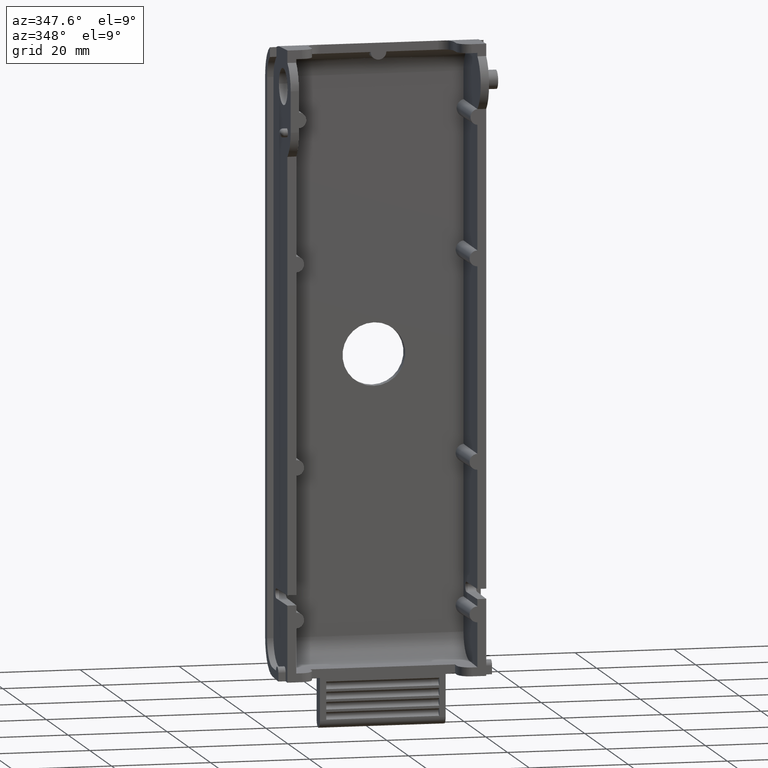
[diagram: clean part render]
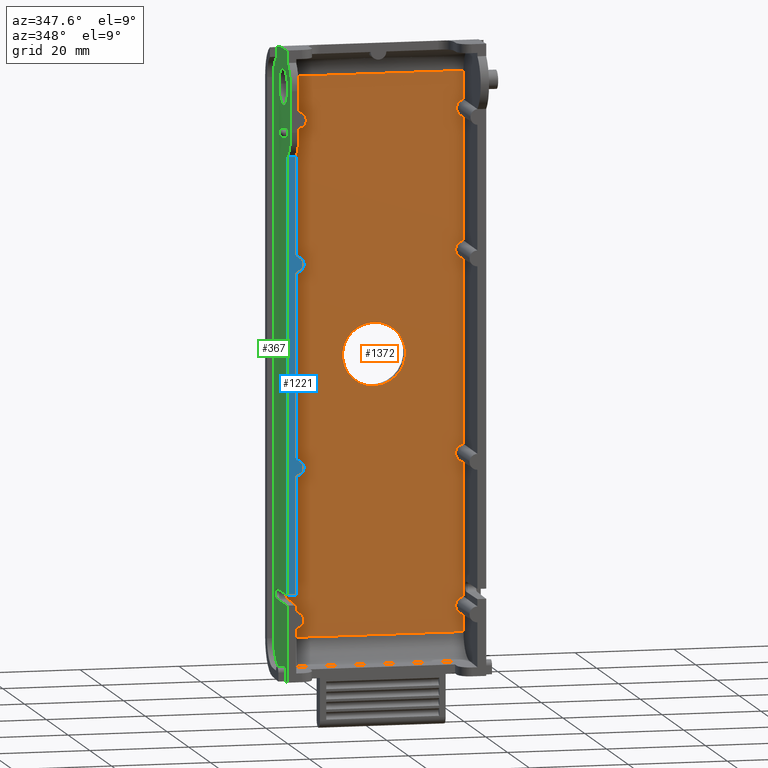
[diagram: same view with three faces highlighted in distinct colors, each labeled with its STEP entity id]
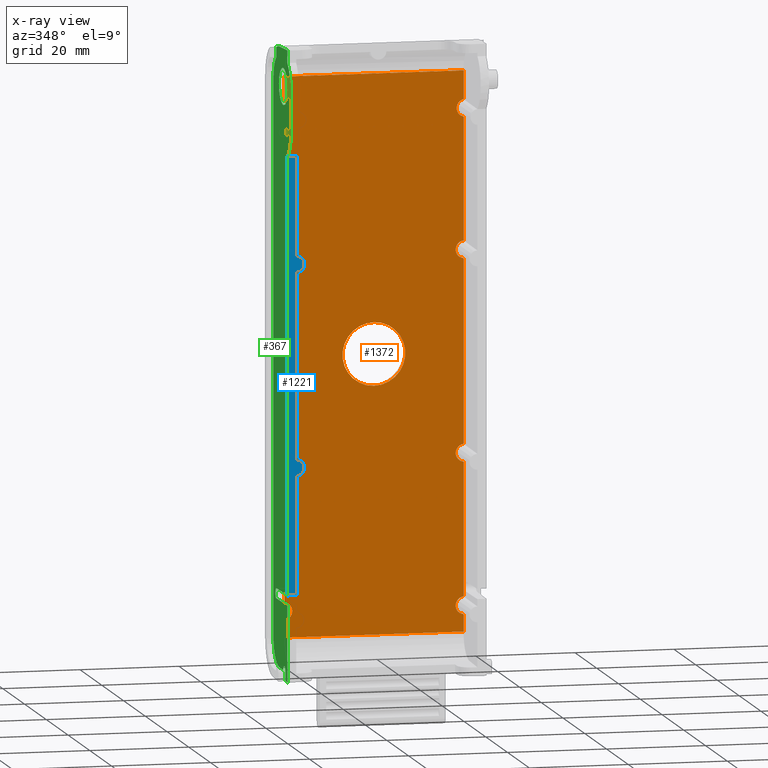
[diagram: x-ray of the same camera — body ghosted, the three highlighted faces saturated]
A machine part, auxiliary view with three faces highlighted in distinct colors.
The next image is the same camera in x-ray (body ghosted, the three faces saturated) — at least one of them is partly hidden behind the body in this view.
Their STEP definitions:

[orange] entity #1372 — the highlighted planar face has unit normal (0, -1, 0).
#13 = VECTOR ( 'NONE', #3263, 39.37007874015748100 ) ;
#54 = DIRECTION ( 'NONE',  ( 0.0000000000000000000, 0.0000000000000000000, -1.000000000000000000 ) ) ;
#77 = CIRCLE ( 'NONE', #538, 0.07061660519162112100 ) ;
#87 = CARTESIAN_POINT ( 'NONE',  ( -0.7125342721087089000, 0.4650000000000000800, 0.8701485969136423200 ) ) ;
#144 = CARTESIAN_POINT ( 'NONE',  ( 0.7206508773003300600, 0.4650000000000000200, -2.000000000000000400 ) ) ;
#153 = ORIENTED_EDGE ( 'NONE', *, *, #2502, .F. ) ;
#170 = DIRECTION ( 'NONE',  ( 0.0000000000000000000, -1.000000000000000000, 0.0000000000000000000 ) ) ;
#185 = LINE ( 'NONE', #1217, #2813 ) ;
#187 = EDGE_CURVE ( 'NONE', #298, #2807, #1950, .T. ) ;
#201 = DIRECTION ( 'NONE',  ( -0.0000000000000000000, 1.000000000000000000, -0.0000000000000000000 ) ) ;
#202 = VERTEX_POINT ( 'NONE', #3874 ) ;
#205 = CARTESIAN_POINT ( 'NONE',  ( -0.7125342721087089000, 0.4650000000000000200, -0.7298514030863579900 ) ) ;
#220 = CARTESIAN_POINT ( 'NONE',  ( -0.7125342721087089000, 0.4650000000000000800, 2.450000000000000200 ) ) ;
#235 = LINE ( 'NONE', #2969, #3631 ) ;
#238 = DIRECTION ( 'NONE',  ( -0.0000000000000000000, -0.0000000000000000000, -1.000000000000000000 ) ) ;
#289 = AXIS2_PLACEMENT_3D ( 'NONE', #1314, #3615, #1650 ) ;
#298 = VERTEX_POINT ( 'NONE', #3239 ) ;
#333 = LINE ( 'NONE', #4114, #3747 ) ;
#353 = DIRECTION ( 'NONE',  ( -0.0000000000000000000, -0.0000000000000000000, -1.000000000000000000 ) ) ;
#403 = ORIENTED_EDGE ( 'NONE', *, *, #963, .F. ) ;
#421 = CARTESIAN_POINT ( 'NONE',  ( 0.7125342721087089000, 0.4650000000000000200, -0.8701485969136421000 ) ) ;
#430 = CARTESIAN_POINT ( 'NONE',  ( -0.7206508773003300600, 0.4650000000000000200, -0.8000000000000000400 ) ) ;
#457 = VERTEX_POINT ( 'NONE', #2416 ) ;
#474 = DIRECTION ( 'NONE',  ( 0.0000000000000000000, 0.0000000000000000000, -1.000000000000000000 ) ) ;
#538 = AXIS2_PLACEMENT_3D ( 'NONE', #430, #2735, #763 ) ;
#557 = VERTEX_POINT ( 'NONE', #1553 ) ;
#576 = CARTESIAN_POINT ( 'NONE',  ( 0.7125342721087089000, 0.4650000000000000800, 2.450000000000000200 ) ) ;
#596 = LINE ( 'NONE', #4113, #4008 ) ;
#639 = CARTESIAN_POINT ( 'NONE',  ( 0.7125342721087089000, 0.4650000000000000200, 0.8701485969136421000 ) ) ;
#714 = VERTEX_POINT ( 'NONE', #3972 ) ;
#739 = EDGE_CURVE ( 'NONE', #202, #3599, #1536, .T. ) ;
#745 = DIRECTION ( 'NONE',  ( 0.0000000000000000000, -1.000000000000000000, 0.0000000000000000000 ) ) ;
#763 = DIRECTION ( 'NONE',  ( 0.0000000000000000000, 0.0000000000000000000, -1.000000000000000000 ) ) ;
#764 = ORIENTED_EDGE ( 'NONE', *, *, #2616, .T. ) ;
#773 = ORIENTED_EDGE ( 'NONE', *, *, #2632, .T. ) ;
#901 = CIRCLE ( 'NONE', #289, 0.07061660519162112100 ) ;
#902 = LINE ( 'NONE', #4257, #13 ) ;
#921 = CARTESIAN_POINT ( 'NONE',  ( -0.6343070558001396900, 0.4649999999999999700, 1.908608527929689400 ) ) ;
#946 = VERTEX_POINT ( 'NONE', #2773 ) ;
#963 = EDGE_CURVE ( 'NONE', #2807, #3726, #596, .T. ) ;
#1029 = ORIENTED_EDGE ( 'NONE', *, *, #1320, .T. ) ;
#1053 = EDGE_CURVE ( 'NONE', #2590, #3726, #1947, .T. ) ;
#1058 = CIRCLE ( 'NONE', #4160, 0.07061660519162112100 ) ;
#1066 = VECTOR ( 'NONE', #2024, 39.37007874015748100 ) ;
#1070 = AXIS2_PLACEMENT_3D ( 'NONE', #3909, #1934, #4239 ) ;
#1071 = EDGE_CURVE ( 'NONE', #1181, #714, #185, .T. ) ;
#1100 = CARTESIAN_POINT ( 'NONE',  ( 0.7125342721087089000, 0.4650000000000000800, 2.450000000000000200 ) ) ;
#1115 = FACE_OUTER_BOUND ( 'NONE', #2717, .T. ) ;
#1134 = ORIENTED_EDGE ( 'NONE', *, *, #2592, .F. ) ;
#1181 = VERTEX_POINT ( 'NONE', #3912 ) ;
#1217 = CARTESIAN_POINT ( 'NONE',  ( -0.7125342721087089000, 0.4650000000000000800, 2.450000000000000200 ) ) ;
#1279 = ORIENTED_EDGE ( 'NONE', *, *, #1946, .F. ) ;
#1288 = AXIS2_PLACEMENT_3D ( 'NONE', #2719, #745, #3037 ) ;
#1302 = EDGE_CURVE ( 'NONE', #3115, #2496, #235, .T. ) ;
#1314 = CARTESIAN_POINT ( 'NONE',  ( 0.7206508773003300600, 0.4650000000000000200, -0.8000000000000000400 ) ) ;
#1320 = EDGE_CURVE ( 'NONE', #457, #1962, #1992, .T. ) ;
#1362 = LINE ( 'NONE', #1963, #1576 ) ;
#1372 = ADVANCED_FACE ( 'NONE', ( #1115, #2650 ), #3023, .T. ) ;
#1491 = EDGE_CURVE ( 'NONE', #2590, #714, #3901, .T. ) ;
#1507 = DIRECTION ( 'NONE',  ( -0.0000000000000000000, -0.0000000000000000000, -1.000000000000000000 ) ) ;
#1532 = EDGE_CURVE ( 'NONE', #2496, #3314, #1058, .T. ) ;
#1536 = LINE ( 'NONE', #3663, #1066 ) ;
#1543 = AXIS2_PLACEMENT_3D ( 'NONE', #3795, #1822, #4132 ) ;
#1548 = ORIENTED_EDGE ( 'NONE', *, *, #2332, .T. ) ;
#1553 = CARTESIAN_POINT ( 'NONE',  ( 0.7125342721087089000, 0.4650000000000000200, -0.7298514030863579900 ) ) ;
#1572 = EDGE_CURVE ( 'NONE', #1181, #1749, #77, .T. ) ;
#1574 = CARTESIAN_POINT ( 'NONE',  ( -0.7125342721087089000, 0.4650000000000000800, 2.018509417297156700 ) ) ;
#1576 = VECTOR ( 'NONE', #2295, 39.37007874015748100 ) ;
#1618 = VECTOR ( 'NONE', #2146, 39.37007874015748100 ) ;
#1650 = DIRECTION ( 'NONE',  ( 0.0000000000000000000, 0.0000000000000000000, -1.000000000000000000 ) ) ;
#1654 = EDGE_CURVE ( 'NONE', #298, #2121, #1736, .T. ) ;
#1711 = ORIENTED_EDGE ( 'NONE', *, *, #1654, .T. ) ;
#1712 = VERTEX_POINT ( 'NONE', #3794 ) ;
#1736 = CIRCLE ( 'NONE', #1871, 0.07061660519162138400 ) ;
#1749 = VERTEX_POINT ( 'NONE', #205 ) ;
#1822 = DIRECTION ( 'NONE',  ( -0.0000000000000000000, 1.000000000000000000, -0.0000000000000000000 ) ) ;
#1871 = AXIS2_PLACEMENT_3D ( 'NONE', #144, #2454, #474 ) ;
#1927 =( BOUNDED_CURVE ( )  B_SPLINE_CURVE ( 3, ( #1574, #2248, #921, #3218 ),
 .UNSPECIFIED., .F., .F. ) 
 B_SPLINE_CURVE_WITH_KNOTS ( ( 4, 4 ),
 ( 1.904536264446898600, 4.378649042732700300 ),
 .UNSPECIFIED. ) 
 CURVE ( )  GEOMETRIC_REPRESENTATION_ITEM ( )  RATIONAL_B_SPLINE_CURVE ( ( 1.000000000000000000, 0.5517192622092108600, 0.5517192622092108600, 1.000000000000000000 ) ) 
 REPRESENTATION_ITEM ( '' )  );
#1934 = DIRECTION ( 'NONE',  ( 0.0000000000000000000, -1.000000000000000000, 0.0000000000000000000 ) ) ;
#1946 = EDGE_CURVE ( 'NONE', #1712, #1962, #1362, .T. ) ;
#1947 = LINE ( 'NONE', #220, #2048 ) ;
#1950 = LINE ( 'NONE', #2227, #2055 ) ;
#1962 = VERTEX_POINT ( 'NONE', #639 ) ;
#1963 = CARTESIAN_POINT ( 'NONE',  ( 0.7125342721087089000, 0.4650000000000000800, 2.450000000000000200 ) ) ;
#1992 = CIRCLE ( 'NONE', #2266, 0.07061660519162112100 ) ;
#2016 = ORIENTED_EDGE ( 'NONE', *, *, #1302, .T. ) ;
#2024 = DIRECTION ( 'NONE',  ( -0.0000000000000000000, -0.0000000000000000000, -1.000000000000000000 ) ) ;
#2032 = VECTOR ( 'NONE', #3402, 39.37007874015748100 ) ;
#2033 = DIRECTION ( 'NONE',  ( -0.0000000000000000000, 1.000000000000000000, -0.0000000000000000000 ) ) ;
#2048 = VECTOR ( 'NONE', #2530, 39.37007874015748100 ) ;
#2055 = VECTOR ( 'NONE', #238, 39.37007874015748100 ) ;
#2117 = CARTESIAN_POINT ( 'NONE',  ( 0.8000000000000000400, 0.4650000000000000200, 2.206764030802090400 ) ) ;
#2121 = VERTEX_POINT ( 'NONE', #2715 ) ;
#2146 = DIRECTION ( 'NONE',  ( 1.000000000000000000, 0.0000000000000000000, 0.0000000000000000000 ) ) ;
#2156 = CARTESIAN_POINT ( 'NONE',  ( -0.7206508773003298400, 0.4650000000000000200, -2.000000000000000900 ) ) ;
#2188 = CARTESIAN_POINT ( 'NONE',  ( -0.7206508773003300600, 0.4650000000000000200, 0.8000000000000000400 ) ) ;
#2204 = CARTESIAN_POINT ( 'NONE',  ( -0.7125342721087089000, 0.4650000000000000800, 1.881490582702844500 ) ) ;
#2227 = CARTESIAN_POINT ( 'NONE',  ( 0.7125342721087089000, 0.4650000000000000800, 2.450000000000000200 ) ) ;
#2234 = DIRECTION ( 'NONE',  ( -0.0000000000000000000, -0.0000000000000000000, -1.000000000000000000 ) ) ;
#2248 = CARTESIAN_POINT ( 'NONE',  ( -0.6343070558001396900, 0.4649999999999999700, 1.991391472070312300 ) ) ;
#2266 = AXIS2_PLACEMENT_3D ( 'NONE', #4009, #2033, #54 ) ;
#2295 = DIRECTION ( 'NONE',  ( -0.0000000000000000000, -0.0000000000000000000, -1.000000000000000000 ) ) ;
#2300 = ORIENTED_EDGE ( 'NONE', *, *, #3175, .F. ) ;
#2315 = ORIENTED_EDGE ( 'NONE', *, *, #187, .F. ) ;
#2332 = EDGE_CURVE ( 'NONE', #2476, #557, #901, .T. ) ;
#2416 = CARTESIAN_POINT ( 'NONE',  ( 0.7125342721087089000, 0.4650000000000000200, 0.7298514030863579900 ) ) ;
#2454 = DIRECTION ( 'NONE',  ( -0.0000000000000000000, 1.000000000000000000, -0.0000000000000000000 ) ) ;
#2476 = VERTEX_POINT ( 'NONE', #421 ) ;
#2483 = DIRECTION ( 'NONE',  ( 0.0000000000000000000, 0.0000000000000000000, -1.000000000000000000 ) ) ;
#2496 = VERTEX_POINT ( 'NONE', #87 ) ;
#2502 = EDGE_CURVE ( 'NONE', #2476, #2121, #2799, .T. ) ;
#2512 = DIRECTION ( 'NONE',  ( 0.0000000000000000000, 0.0000000000000000000, -1.000000000000000000 ) ) ;
#2530 = DIRECTION ( 'NONE',  ( -0.0000000000000000000, -0.0000000000000000000, -1.000000000000000000 ) ) ;
#2590 = VERTEX_POINT ( 'NONE', #3780 ) ;
#2592 = EDGE_CURVE ( 'NONE', #2679, #202, #4246, .T. ) ;
#2616 = EDGE_CURVE ( 'NONE', #1712, #3599, #3363, .T. ) ;
#2632 = EDGE_CURVE ( 'NONE', #2679, #2922, #333, .T. ) ;
#2645 = LINE ( 'NONE', #576, #4207 ) ;
#2650 = FACE_BOUND ( 'NONE', #2899, .T. ) ;
#2679 = VERTEX_POINT ( 'NONE', #4154 ) ;
#2715 = CARTESIAN_POINT ( 'NONE',  ( 0.7125342721087089000, 0.4650000000000000200, -1.929851403086358300 ) ) ;
#2717 = EDGE_LOOP ( 'NONE', ( #764, #3096, #1134, #773, #3475, #2016, #3124, #3450, #2891, #3015, #3195, #2793, #403, #2315, #1711, #153, #1548, #2300, #1029, #1279 ) ) ;
#2719 = CARTESIAN_POINT ( 'NONE',  ( 0.8000000000000000400, 0.4650000000000000200, 2.467500000000000200 ) ) ;
#2735 = DIRECTION ( 'NONE',  ( 0.0000000000000000000, -1.000000000000000000, 0.0000000000000000000 ) ) ;
#2773 = CARTESIAN_POINT ( 'NONE',  ( 0.0000000000000000000, 0.4650000000000000200, -0.2500000000000000000 ) ) ;
#2793 = ORIENTED_EDGE ( 'NONE', *, *, #1053, .T. ) ;
#2799 = LINE ( 'NONE', #1100, #2032 ) ;
#2807 = VERTEX_POINT ( 'NONE', #2954 ) ;
#2813 = VECTOR ( 'NONE', #4173, 39.37007874015748100 ) ;
#2891 = ORIENTED_EDGE ( 'NONE', *, *, #1572, .F. ) ;
#2899 = EDGE_LOOP ( 'NONE', ( #3504 ) ) ;
#2922 = VERTEX_POINT ( 'NONE', #4044 ) ;
#2954 = CARTESIAN_POINT ( 'NONE',  ( 0.7125342721087087900, 0.4650000000000000800, -2.206764030802090800 ) ) ;
#2969 = CARTESIAN_POINT ( 'NONE',  ( -0.7125342721087089000, 0.4650000000000000800, 2.450000000000000200 ) ) ;
#3015 = ORIENTED_EDGE ( 'NONE', *, *, #1071, .T. ) ;
#3023 = PLANE ( 'NONE',  #1288 ) ;
#3036 = AXIS2_PLACEMENT_3D ( 'NONE', #2156, #170, #2483 ) ;
#3037 = DIRECTION ( 'NONE',  ( 0.0000000000000000000, -0.0000000000000000000, -1.000000000000000000 ) ) ;
#3096 = ORIENTED_EDGE ( 'NONE', *, *, #739, .F. ) ;
#3115 = VERTEX_POINT ( 'NONE', #2204 ) ;
#3120 = DIRECTION ( 'NONE',  ( -1.000000000000000000, -0.0000000000000000000, -0.0000000000000000000 ) ) ;
#3124 = ORIENTED_EDGE ( 'NONE', *, *, #1532, .T. ) ;
#3175 = EDGE_CURVE ( 'NONE', #457, #557, #2645, .T. ) ;
#3192 = EDGE_CURVE ( 'NONE', #2922, #3115, #1927, .T. ) ;
#3195 = ORIENTED_EDGE ( 'NONE', *, *, #1491, .F. ) ;
#3218 = CARTESIAN_POINT ( 'NONE',  ( -0.7125342721087089000, 0.4650000000000000800, 1.881490582702844500 ) ) ;
#3229 = EDGE_CURVE ( 'NONE', #946, #946, #4104, .T. ) ;
#3239 = CARTESIAN_POINT ( 'NONE',  ( 0.7125342721087089000, 0.4650000000000000200, -2.070148596913643100 ) ) ;
#3263 = DIRECTION ( 'NONE',  ( -0.0000000000000000000, -0.0000000000000000000, -1.000000000000000000 ) ) ;
#3314 = VERTEX_POINT ( 'NONE', #3612 ) ;
#3363 = CIRCLE ( 'NONE', #1543, 0.07061660519162112100 ) ;
#3402 = DIRECTION ( 'NONE',  ( -0.0000000000000000000, -0.0000000000000000000, -1.000000000000000000 ) ) ;
#3450 = ORIENTED_EDGE ( 'NONE', *, *, #3652, .T. ) ;
#3475 = ORIENTED_EDGE ( 'NONE', *, *, #3192, .T. ) ;
#3504 = ORIENTED_EDGE ( 'NONE', *, *, #3229, .F. ) ;
#3599 = VERTEX_POINT ( 'NONE', #4232 ) ;
#3612 = CARTESIAN_POINT ( 'NONE',  ( -0.7125342721087089000, 0.4650000000000000800, 0.7298514030863581000 ) ) ;
#3615 = DIRECTION ( 'NONE',  ( -0.0000000000000000000, 1.000000000000000000, -0.0000000000000000000 ) ) ;
#3631 = VECTOR ( 'NONE', #353, 39.37007874015748100 ) ;
#3652 = EDGE_CURVE ( 'NONE', #3314, #1749, #902, .T. ) ;
#3663 = CARTESIAN_POINT ( 'NONE',  ( 0.7125342721087089000, 0.4650000000000000800, 2.450000000000000200 ) ) ;
#3726 = VERTEX_POINT ( 'NONE', #3974 ) ;
#3747 = VECTOR ( 'NONE', #1507, 39.37007874015748100 ) ;
#3780 = CARTESIAN_POINT ( 'NONE',  ( -0.7125342721087089000, 0.4650000000000000200, -2.070148596913643100 ) ) ;
#3794 = CARTESIAN_POINT ( 'NONE',  ( 0.7125342721087089000, 0.4650000000000000200, 1.843519628296082600 ) ) ;
#3795 = CARTESIAN_POINT ( 'NONE',  ( 0.7281615402634036300, 0.4650000000000000200, 1.912385392060166100 ) ) ;
#3874 = CARTESIAN_POINT ( 'NONE',  ( 0.7125342721087087900, 0.4650000000000000800, 2.206764030802090400 ) ) ;
#3901 = CIRCLE ( 'NONE', #3036, 0.07061660519162138400 ) ;
#3909 = CARTESIAN_POINT ( 'NONE',  ( 0.0000000000000000000, 0.4650000000000000200, 0.0000000000000000000 ) ) ;
#3912 = CARTESIAN_POINT ( 'NONE',  ( -0.7125342721087089000, 0.4650000000000000200, -0.8701485969136421000 ) ) ;
#3972 = CARTESIAN_POINT ( 'NONE',  ( -0.7125342721087089000, 0.4650000000000000200, -1.929851403086358500 ) ) ;
#3974 = CARTESIAN_POINT ( 'NONE',  ( -0.7125342721087089000, 0.4650000000000000800, -2.206764030802090800 ) ) ;
#4008 = VECTOR ( 'NONE', #3120, 39.37007874015748100 ) ;
#4009 = CARTESIAN_POINT ( 'NONE',  ( 0.7206508773003300600, 0.4650000000000000200, 0.8000000000000000400 ) ) ;
#4044 = CARTESIAN_POINT ( 'NONE',  ( -0.7125342721087089000, 0.4650000000000000800, 2.018509417297156700 ) ) ;
#4104 = CIRCLE ( 'NONE', #1070, 0.2500000000000000000 ) ;
#4113 = CARTESIAN_POINT ( 'NONE',  ( 0.8000000000000000400, 0.4650000000000000200, -2.206764030802090800 ) ) ;
#4114 = CARTESIAN_POINT ( 'NONE',  ( -0.7125342721087089000, 0.4650000000000000800, 2.450000000000000200 ) ) ;
#4132 = DIRECTION ( 'NONE',  ( 0.0000000000000000000, 0.0000000000000000000, -1.000000000000000000 ) ) ;
#4154 = CARTESIAN_POINT ( 'NONE',  ( -0.7125342721087082300, 0.4650000000000000200, 2.206764030802090400 ) ) ;
#4160 = AXIS2_PLACEMENT_3D ( 'NONE', #2188, #201, #2512 ) ;
#4173 = DIRECTION ( 'NONE',  ( -0.0000000000000000000, -0.0000000000000000000, -1.000000000000000000 ) ) ;
#4207 = VECTOR ( 'NONE', #2234, 39.37007874015748100 ) ;
#4232 = CARTESIAN_POINT ( 'NONE',  ( 0.7125342721087089000, 0.4650000000000000200, 1.981251155824249600 ) ) ;
#4239 = DIRECTION ( 'NONE',  ( 0.0000000000000000000, 0.0000000000000000000, -1.000000000000000000 ) ) ;
#4246 = LINE ( 'NONE', #2117, #1618 ) ;
#4257 = CARTESIAN_POINT ( 'NONE',  ( -0.7125342721087089000, 0.4650000000000000800, 2.450000000000000200 ) ) ;

[blue] entity #1221 — the highlighted planar face has unit normal (-0, 1, 0).
#26 = DIRECTION ( 'NONE',  ( 0.0000000000000000000, 0.0000000000000000000, -1.000000000000000000 ) ) ;
#59 = EDGE_CURVE ( 'NONE', #4229, #478, #918, .T. ) ;
#76 = ORIENTED_EDGE ( 'NONE', *, *, #2405, .F. ) ;
#92 = ORIENTED_EDGE ( 'NONE', *, *, #2025, .T. ) ;
#253 = EDGE_CURVE ( 'NONE', #360, #478, #3489, .T. ) ;
#275 = VECTOR ( 'NONE', #2071, 39.37007874015748100 ) ;
#287 = CARTESIAN_POINT ( 'NONE',  ( -0.7672774508502276900, -1.707404996040164500E-017, 1.650145907595724300 ) ) ;
#313 = PLANE ( 'NONE',  #2479 ) ;
#360 = VERTEX_POINT ( 'NONE', #3305 ) ;
#445 = VERTEX_POINT ( 'NONE', #2726 ) ;
#464 = EDGE_CURVE ( 'NONE', #360, #3649, #1120, .T. ) ;
#478 = VERTEX_POINT ( 'NONE', #3073 ) ;
#755 = CARTESIAN_POINT ( 'NONE',  ( -0.7206508773003299500, 0.0000000000000000000, 0.7374999999999999300 ) ) ;
#823 = ORIENTED_EDGE ( 'NONE', *, *, #2727, .T. ) ;
#832 = EDGE_LOOP ( 'NONE', ( #2804, #823, #1076, #1403, #2230, #92, #76, #1450 ) ) ;
#886 = DIRECTION ( 'NONE',  ( 1.000000000000000000, -0.0000000000000000000, -0.0000000000000000000 ) ) ;
#918 = LINE ( 'NONE', #3960, #2471 ) ;
#1016 = CARTESIAN_POINT ( 'NONE',  ( -0.7206508773003300600, 0.0000000000000000000, 0.8000000000000000400 ) ) ;
#1049 = LINE ( 'NONE', #4047, #275 ) ;
#1076 = ORIENTED_EDGE ( 'NONE', *, *, #464, .F. ) ;
#1120 = LINE ( 'NONE', #3059, #2000 ) ;
#1221 = ADVANCED_FACE ( 'NONE', ( #1423 ), #313, .F. ) ;
#1235 = VERTEX_POINT ( 'NONE', #3622 ) ;
#1280 = CARTESIAN_POINT ( 'NONE',  ( -0.7206508773003300600, 0.0000000000000000000, -0.8000000000000000400 ) ) ;
#1308 = DIRECTION ( 'NONE',  ( 0.0000000000000000000, -0.0000000000000000000, 1.000000000000000000 ) ) ;
#1349 = DIRECTION ( 'NONE',  ( 0.0000000000000000000, 0.0000000000000000000, 1.000000000000000000 ) ) ;
#1403 = ORIENTED_EDGE ( 'NONE', *, *, #253, .T. ) ;
#1423 = FACE_OUTER_BOUND ( 'NONE', #832, .T. ) ;
#1450 = ORIENTED_EDGE ( 'NONE', *, *, #2276, .T. ) ;
#1559 = VERTEX_POINT ( 'NONE', #4163 ) ;
#1608 = CARTESIAN_POINT ( 'NONE',  ( -0.7206508773003300600, 1.024442997624098700E-016, 1.650704065515080600 ) ) ;
#1611 = DIRECTION ( 'NONE',  ( 0.0000000000000000000, 0.0000000000000000000, -1.000000000000000000 ) ) ;
#2000 = VECTOR ( 'NONE', #2401, 39.37007874015748100 ) ;
#2025 = EDGE_CURVE ( 'NONE', #4229, #4162, #3575, .T. ) ;
#2071 = DIRECTION ( 'NONE',  ( 0.0000000000000000000, 0.0000000000000000000, -1.000000000000000000 ) ) ;
#2230 = ORIENTED_EDGE ( 'NONE', *, *, #59, .F. ) ;
#2276 = EDGE_CURVE ( 'NONE', #1559, #1235, #2331, .T. ) ;
#2331 =( BOUNDED_CURVE ( )  B_SPLINE_CURVE ( 3, ( #1608, #4242, #287, #2599 ),
 .UNSPECIFIED., .F., .F. ) 
 B_SPLINE_CURVE_WITH_KNOTS ( ( 4, 4 ),
 ( 4.109700736648319400, 4.115621377713483600 ),
 .UNSPECIFIED. ) 
 CURVE ( )  GEOMETRIC_REPRESENTATION_ITEM ( )  RATIONAL_B_SPLINE_CURVE ( ( 1.000000000000000000, 0.9999970788362480000, 0.9999970788362480000, 1.000000000000000000 ) ) 
 REPRESENTATION_ITEM ( '' )  );
#2354 = DIRECTION ( 'NONE',  ( 0.0000000000000000000, 0.0000000000000000000, -1.000000000000000000 ) ) ;
#2401 = DIRECTION ( 'NONE',  ( 0.0000000000000000000, 0.0000000000000000000, -1.000000000000000000 ) ) ;
#2405 = EDGE_CURVE ( 'NONE', #1559, #4162, #2447, .T. ) ;
#2447 = LINE ( 'NONE', #4000, #3996 ) ;
#2471 = VECTOR ( 'NONE', #26, 39.37007874015748100 ) ;
#2479 = AXIS2_PLACEMENT_3D ( 'NONE', #4266, #3271, #1308 ) ;
#2560 = LINE ( 'NONE', #3180, #4210 ) ;
#2599 = CARTESIAN_POINT ( 'NONE',  ( -0.7906615402634036300, 3.414809992080329000E-017, 1.649868637789343500 ) ) ;
#2726 = CARTESIAN_POINT ( 'NONE',  ( -0.7906615402634036300, 0.0000000000000000000, -1.799999999999999800 ) ) ;
#2727 = EDGE_CURVE ( 'NONE', #445, #3649, #2560, .T. ) ;
#2804 = ORIENTED_EDGE ( 'NONE', *, *, #3827, .T. ) ;
#2919 = CARTESIAN_POINT ( 'NONE',  ( -0.7206508773003298400, 0.0000000000000000000, -1.799999999999999800 ) ) ;
#3059 = CARTESIAN_POINT ( 'NONE',  ( -0.7206508773003300600, 0.0000000000000000000, 2.467500000000000200 ) ) ;
#3073 = CARTESIAN_POINT ( 'NONE',  ( -0.7206508773003300600, 0.0000000000000000000, -0.7374999999999999300 ) ) ;
#3180 = CARTESIAN_POINT ( 'NONE',  ( -2.450000000000000200, 0.0000000000000000000, -1.799999999999999800 ) ) ;
#3271 = DIRECTION ( 'NONE',  ( -0.0000000000000000000, 1.000000000000000000, 0.0000000000000000000 ) ) ;
#3305 = CARTESIAN_POINT ( 'NONE',  ( -0.7206508773003300600, 0.0000000000000000000, -0.8625000000000003800 ) ) ;
#3312 = DIRECTION ( 'NONE',  ( -0.0000000000000000000, -1.000000000000000000, -0.0000000000000000000 ) ) ;
#3360 = CARTESIAN_POINT ( 'NONE',  ( -0.7206508773003300600, 0.0000000000000000000, 0.8624999999999999300 ) ) ;
#3417 = AXIS2_PLACEMENT_3D ( 'NONE', #1280, #3574, #1611 ) ;
#3489 = CIRCLE ( 'NONE', #3417, 0.06249999999999995100 ) ;
#3544 = AXIS2_PLACEMENT_3D ( 'NONE', #1016, #3312, #1349 ) ;
#3574 = DIRECTION ( 'NONE',  ( 0.0000000000000000000, -1.000000000000000000, 0.0000000000000000000 ) ) ;
#3575 = CIRCLE ( 'NONE', #3544, 0.06249999999999995100 ) ;
#3622 = CARTESIAN_POINT ( 'NONE',  ( -0.7906615402634036300, 3.414809992080329000E-017, 1.649868637789343500 ) ) ;
#3649 = VERTEX_POINT ( 'NONE', #2919 ) ;
#3827 = EDGE_CURVE ( 'NONE', #1235, #445, #1049, .T. ) ;
#3960 = CARTESIAN_POINT ( 'NONE',  ( -0.7206508773003300600, 0.0000000000000000000, 2.467500000000000200 ) ) ;
#3996 = VECTOR ( 'NONE', #2354, 39.37007874015748100 ) ;
#4000 = CARTESIAN_POINT ( 'NONE',  ( -0.7206508773003300600, 0.0000000000000000000, 2.467500000000000200 ) ) ;
#4047 = CARTESIAN_POINT ( 'NONE',  ( -0.7906615402634036300, 0.0000000000000000000, 2.467500000000000200 ) ) ;
#4162 = VERTEX_POINT ( 'NONE', #3360 ) ;
#4163 = CARTESIAN_POINT ( 'NONE',  ( -0.7206508773003300600, 1.024442997624098700E-016, 1.650704065515080600 ) ) ;
#4210 = VECTOR ( 'NONE', #886, 39.37007874015748100 ) ;
#4229 = VERTEX_POINT ( 'NONE', #755 ) ;
#4242 = CARTESIAN_POINT ( 'NONE',  ( -0.7439404950248002000, -1.707404996040164500E-017, 1.650424384317779300 ) ) ;
#4266 = CARTESIAN_POINT ( 'NONE',  ( 0.8000000000000000400, 0.0000000000000000000, 2.467500000000000200 ) ) ;

[green] entity #367 — the highlighted planar face has unit normal (-0.9998, -0.0175, 0).
#27 = CARTESIAN_POINT ( 'NONE',  ( -0.8000000000000000400, 0.5350000000000000300, 2.467500000000000200 ) ) ;
#122 = CARTESIAN_POINT ( 'NONE',  ( -0.7931676610096630700, 0.1435755613952561200, -2.411126174493035900 ) ) ;
#147 = ORIENTED_EDGE ( 'NONE', *, *, #3905, .T. ) ;
#216 = VERTEX_POINT ( 'NONE', #2562 ) ;
#230 = ORIENTED_EDGE ( 'NONE', *, *, #3946, .F. ) ;
#240 = EDGE_CURVE ( 'NONE', #216, #3287, #966, .T. ) ;
#275 = VECTOR ( 'NONE', #2071, 39.37007874015748100 ) ;
#288 = CARTESIAN_POINT ( 'NONE',  ( -0.7931134799601449200, 0.1404715311472468400, 1.856657750000000300 ) ) ;
#302 = EDGE_LOOP ( 'NONE', ( #2824 ) ) ;
#346 = VERTEX_POINT ( 'NONE', #1663 ) ;
#354 = ORIENTED_EDGE ( 'NONE', *, *, #830, .F. ) ;
#363 = CARTESIAN_POINT ( 'NONE',  ( -0.7984290441564605400, 0.4450000000000002800, -1.879999999999999400 ) ) ;
#367 = ADVANCED_FACE ( 'NONE', ( #3177, #2310, #757 ), #1342, .T. ) ;
#414 = CARTESIAN_POINT ( 'NONE',  ( -0.7906615402634036300, -6.634601186373356800E-033, -2.486182611678085400 ) ) ;
#445 = VERTEX_POINT ( 'NONE', #2726 ) ;
#469 = AXIS2_PLACEMENT_3D ( 'NONE', #27, #3322, #1359 ) ;
#481 =( BOUNDED_CURVE ( )  B_SPLINE_CURVE ( 3, ( #3707, #3364, #1064, #1735 ),
 .UNSPECIFIED., .F., .F. ) 
 B_SPLINE_CURVE_WITH_KNOTS ( ( 4, 4 ),
 ( 0.0000000000000000000, 1.059641341974254300 ),
 .UNSPECIFIED. ) 
 CURVE ( )  GEOMETRIC_REPRESENTATION_ITEM ( )  RATIONAL_B_SPLINE_CURVE ( ( 1.000000000000000000, 0.9085984756239110500, 0.9085984756239110500, 1.000000000000000000 ) ) 
 REPRESENTATION_ITEM ( '' )  );
#532 = LINE ( 'NONE', #4133, #3043 ) ;
#536 = VECTOR ( 'NONE', #1556, 39.37007874015748100 ) ;
#585 = EDGE_CURVE ( 'NONE', #3722, #2001, #599, .T. ) ;
#599 = CIRCLE ( 'NONE', #1048, 0.2500000000000001100 ) ;
#619 = DIRECTION ( 'NONE',  ( 0.01745240643728380300, -0.9998476951563913800, 0.0000000000000000000 ) ) ;
#625 = CARTESIAN_POINT ( 'NONE',  ( -0.7970413087918134500, 0.3654966942057185600, 2.457364139448759300 ) ) ;
#683 = LINE ( 'NONE', #1918, #3211 ) ;
#756 = DIRECTION ( 'NONE',  ( 0.0000000000000000000, 0.0000000000000000000, 1.000000000000000000 ) ) ;
#757 = FACE_BOUND ( 'NONE', #932, .T. ) ;
#765 = CARTESIAN_POINT ( 'NONE',  ( -0.7931676610096630700, 0.1435755613952561200, -2.411126174493035900 ) ) ;
#786 = CARTESIAN_POINT ( 'NONE',  ( -0.7917276719524934900, 0.06107864356128385500, -2.339849056468578300 ) ) ;
#799 = CARTESIAN_POINT ( 'NONE',  ( -0.7956118982655240300, 0.2836058199999999500, 2.181657750000000300 ) ) ;
#827 = CARTESIAN_POINT ( 'NONE',  ( -0.7987781454550247900, 0.4650000000000000800, 2.206764030802090400 ) ) ;
#830 = EDGE_CURVE ( 'NONE', #3287, #4274, #2307, .T. ) ;
#839 = CARTESIAN_POINT ( 'NONE',  ( -0.7973965870131013400, 0.3858505698715437600, -2.402665744768424500 ) ) ;
#843 =( BOUNDED_CURVE ( )  B_SPLINE_CURVE ( 3, ( #799, #2445, #1128, #3427, #1461, #3769, #1793 ),
 .UNSPECIFIED., .T., .F. ) 
 B_SPLINE_CURVE_WITH_KNOTS ( ( 4, 3, 4 ),
 ( 0.0000000000000000000, 3.141592653589793100, 6.283185307179586200 ),
 .UNSPECIFIED. ) 
 CURVE ( )  GEOMETRIC_REPRESENTATION_ITEM ( )  RATIONAL_B_SPLINE_CURVE ( ( 1.000000000000000000, 0.3333333333333333700, 0.3333333333333333700, 1.000000000000000000, 0.3333333333333333700, 0.3333333333333333700, 1.000000000000000000 ) ) 
 REPRESENTATION_ITEM ( '' )  );
#875 = VERTEX_POINT ( 'NONE', #1112 ) ;
#884 = CARTESIAN_POINT ( 'NONE',  ( -0.7954516091742255300, 0.2744228641096752600, 2.476599554097245200 ) ) ;
#910 = CARTESIAN_POINT ( 'NONE',  ( -0.7969948834043830700, 0.3628369855411390200, 2.381200048471099800 ) ) ;
#924 = CARTESIAN_POINT ( 'NONE',  ( -0.7906615402634037400, 0.0000000000000000000, 2.486182611678085400 ) ) ;
#932 = EDGE_LOOP ( 'NONE', ( #230 ) ) ;
#944 = ORIENTED_EDGE ( 'NONE', *, *, #2640, .F. ) ;
#966 = LINE ( 'NONE', #1596, #2617 ) ;
#1021 = ORIENTED_EDGE ( 'NONE', *, *, #1874, .T. ) ;
#1048 = AXIS2_PLACEMENT_3D ( 'NONE', #3870, #1893, #4201 ) ;
#1049 = LINE ( 'NONE', #4047, #275 ) ;
#1064 = CARTESIAN_POINT ( 'NONE',  ( -0.7981239283288748000, 0.4275199259446596500, 2.344920935994308400 ) ) ;
#1082 = CARTESIAN_POINT ( 'NONE',  ( -0.7969694493362000600, 0.3613798687508218400, 2.339473683000789600 ) ) ;
#1083 = CARTESIAN_POINT ( 'NONE',  ( -0.8029608941900767700, 0.7046295145422341000, -2.391533738722755800 ) ) ;
#1109 = VECTOR ( 'NONE', #3522, 39.37007874015748100 ) ;
#1112 = CARTESIAN_POINT ( 'NONE',  ( -0.7970326389622032200, 0.3649999999999999400, -1.880000000000000800 ) ) ;
#1126 = ORIENTED_EDGE ( 'NONE', *, *, #2443, .F. ) ;
#1128 = CARTESIAN_POINT ( 'NONE',  ( -0.7905499294363410600, -0.006394179999999963700, 1.891657750000000500 ) ) ;
#1135 = CARTESIAN_POINT ( 'NONE',  ( -0.7956118982655240300, 0.2836058199999999500, 2.181657750000000300 ) ) ;
#1175 = CARTESIAN_POINT ( 'NONE',  ( -0.7987781454550247900, 0.4650000000000000200, -2.206764030802090800 ) ) ;
#1178 = CARTESIAN_POINT ( 'NONE',  ( -0.7906615402634036300, 0.0000000000000000000, 2.467500000000000200 ) ) ;
#1211 = CIRCLE ( 'NONE', #4092, 0.2500000000000000000 ) ;
#1229 = CARTESIAN_POINT ( 'NONE',  ( -0.7905415940478958100, -0.006871714084198937900, -2.486422577221633300 ) ) ;
#1235 = VERTEX_POINT ( 'NONE', #3622 ) ;
#1254 = LINE ( 'NONE', #2743, #2249 ) ;
#1285 = ORIENTED_EDGE ( 'NONE', *, *, #585, .T. ) ;
#1335 = CARTESIAN_POINT ( 'NONE',  ( -0.7954089670655621900, 0.2719798993405004900, -2.406642196205909900 ) ) ;
#1342 = PLANE ( 'NONE',  #469 ) ;
#1356 = EDGE_CURVE ( 'NONE', #3991, #1809, #481, .T. ) ;
#1359 = DIRECTION ( 'NONE',  ( 0.01745240643728355000, -0.9998476951563912700, 0.0000000000000000000 ) ) ;
#1411 = DIRECTION ( 'NONE',  ( -0.0006091728678748130900, 0.03489949022704765000, 0.9993906415863165200 ) ) ;
#1461 = CARTESIAN_POINT ( 'NONE',  ( -0.7905499294363410600, -0.006394180000000035700, 2.471657750000000300 ) ) ;
#1472 = CARTESIAN_POINT ( 'NONE',  ( -0.7903783835891680100, -0.01622203500245650000, 1.766293844856999800 ) ) ;
#1489 = DIRECTION ( 'NONE',  ( -0.01744177813809451000, 0.9992388003036507500, 0.03489418781261535000 ) ) ;
#1505 = CARTESIAN_POINT ( 'NONE',  ( -0.7987781454550247900, 0.4650000000000000200, -2.206764030802090800 ) ) ;
#1523 = LINE ( 'NONE', #1540, #2397 ) ;
#1540 = CARTESIAN_POINT ( 'NONE',  ( -0.7906615402634036300, 0.0000000000000000000, 2.467500000000000200 ) ) ;
#1556 = DIRECTION ( 'NONE',  ( 0.01744177813809451000, -0.9992388003036507500, 0.03489418781261729300 ) ) ;
#1596 = CARTESIAN_POINT ( 'NONE',  ( -0.7916739340292402400, 0.05800000000000000300, -2.484157207047564200 ) ) ;
#1610 =( BOUNDED_CURVE ( )  B_SPLINE_CURVE ( 3, ( #122, #3743, #786, #3072 ),
 .UNSPECIFIED., .F., .F. ) 
 B_SPLINE_CURVE_WITH_KNOTS ( ( 4, 4 ),
 ( 0.1107610921941707100, 3.100644731475401500 ),
 .UNSPECIFIED. ) 
 CURVE ( )  GEOMETRIC_REPRESENTATION_ITEM ( )  RATIONAL_B_SPLINE_CURVE ( ( 1.000000000000000000, 0.3838545231947411200, 0.3838545231947411200, 1.000000000000000000 ) ) 
 REPRESENTATION_ITEM ( '' )  );
#1663 = CARTESIAN_POINT ( 'NONE',  ( -0.7970326389622031100, 0.3649999999999999900, -1.799999999999999400 ) ) ;
#1683 = CARTESIAN_POINT ( 'NONE',  ( -0.7970326389622031100, 0.3649999999999999900, -1.799999999999999400 ) ) ;
#1735 = CARTESIAN_POINT ( 'NONE',  ( -0.7969948834043830700, 0.3628369855411390200, 2.381200048471099800 ) ) ;
#1757 = VERTEX_POINT ( 'NONE', #1175 ) ;
#1765 = ORIENTED_EDGE ( 'NONE', *, *, #4005, .F. ) ;
#1769 = EDGE_CURVE ( 'NONE', #1916, #4078, #3597, .T. ) ;
#1793 = CARTESIAN_POINT ( 'NONE',  ( -0.7956118982655240300, 0.2836058199999999500, 2.181657750000000300 ) ) ;
#1795 = EDGE_CURVE ( 'NONE', #4182, #216, #2757, .T. ) ;
#1803 = ORIENTED_EDGE ( 'NONE', *, *, #1795, .F. ) ;
#1808 = CARTESIAN_POINT ( 'NONE',  ( -0.7903783835891680100, -0.01622203500245651700, 1.906293844857000400 ) ) ;
#1809 = VERTEX_POINT ( 'NONE', #910 ) ;
#1844 = ORIENTED_EDGE ( 'NONE', *, *, #2936, .F. ) ;
#1863 = CARTESIAN_POINT ( 'NONE',  ( -0.7965335660591875700, 0.3364081325353172600, 2.469029355010162500 ) ) ;
#1874 = EDGE_CURVE ( 'NONE', #2836, #3722, #683, .T. ) ;
#1879 = CARTESIAN_POINT ( 'NONE',  ( -0.7954516091742255300, 0.2744228641096752600, 2.476599554097245200 ) ) ;
#1893 = DIRECTION ( 'NONE',  ( -0.9998476951563912700, -0.01745240643728355000, 0.0000000000000000000 ) ) ;
#1916 = VERTEX_POINT ( 'NONE', #625 ) ;
#1918 = CARTESIAN_POINT ( 'NONE',  ( -0.7887503783508239600, -0.1094903926418509500, 2.181657750000000300 ) ) ;
#1964 = CARTESIAN_POINT ( 'NONE',  ( -0.7916739340292402400, 0.05800000000000000300, -2.414114538946647400 ) ) ;
#1993 = VECTOR ( 'NONE', #3808, 39.37007874015748100 ) ;
#1997 = VECTOR ( 'NONE', #3384, 39.37007874015748100 ) ;
#2001 = VERTEX_POINT ( 'NONE', #3295 ) ;
#2039 = DIRECTION ( 'NONE',  ( -0.01745240643728355000, 0.9998476951563912700, 0.0000000000000000000 ) ) ;
#2059 =( BOUNDED_CURVE ( )  B_SPLINE_CURVE ( 3, ( #1683, #2348, #363, #2665 ),
 .UNSPECIFIED., .F., .F. ) 
 B_SPLINE_CURVE_WITH_KNOTS ( ( 4, 4 ),
 ( 1.570796326794896600, 4.712388980384691500 ),
 .UNSPECIFIED. ) 
 CURVE ( )  GEOMETRIC_REPRESENTATION_ITEM ( )  RATIONAL_B_SPLINE_CURVE ( ( 1.000000000000000000, 0.3333333333333327600, 0.3333333333333327600, 1.000000000000000000 ) ) 
 REPRESENTATION_ITEM ( '' )  );
#2060 = ORIENTED_EDGE ( 'NONE', *, *, #3470, .F. ) ;
#2071 = DIRECTION ( 'NONE',  ( 0.0000000000000000000, 0.0000000000000000000, -1.000000000000000000 ) ) ;
#2087 = DIRECTION ( 'NONE',  ( 0.01745240643728355000, -0.9998476951563912700, 7.483375123240618300E-016 ) ) ;
#2101 = LINE ( 'NONE', #1178, #1993 ) ;
#2141 = CARTESIAN_POINT ( 'NONE',  ( -0.7916002381341431500, 0.05377796499754374000, 1.836293844857000100 ) ) ;
#2145 = EDGE_CURVE ( 'NONE', #1757, #3991, #2297, .T. ) ;
#2212 = DIRECTION ( 'NONE',  ( 0.0000000000000000000, 0.0000000000000000000, -1.000000000000000000 ) ) ;
#2249 = VECTOR ( 'NONE', #2087, 39.37007874015748100 ) ;
#2297 = LINE ( 'NONE', #2730, #2396 ) ;
#2299 = ORIENTED_EDGE ( 'NONE', *, *, #240, .F. ) ;
#2307 = LINE ( 'NONE', #1083, #1997 ) ;
#2310 = FACE_BOUND ( 'NONE', #302, .T. ) ;
#2324 = CARTESIAN_POINT ( 'NONE',  ( -0.7887503783508239600, -0.1094903926418509800, 1.856657750000000300 ) ) ;
#2348 = CARTESIAN_POINT ( 'NONE',  ( -0.7984290441564605400, 0.4450000000000004000, -1.799999999999999600 ) ) ;
#2396 = VECTOR ( 'NONE', #756, 39.37007874015748100 ) ;
#2397 = VECTOR ( 'NONE', #2212, 39.37007874015748100 ) ;
#2443 = EDGE_CURVE ( 'NONE', #445, #346, #2995, .T. ) ;
#2445 = CARTESIAN_POINT ( 'NONE',  ( -0.7956118982655240300, 0.2836058199999999500, 1.891657750000000500 ) ) ;
#2449 = CARTESIAN_POINT ( 'NONE',  ( -0.7916002381341431500, 0.05377796499754374000, 1.836293844857000100 ) ) ;
#2455 = CARTESIAN_POINT ( 'NONE',  ( -0.7916002381341431500, 0.05377796499754374000, 1.836293844857000100 ) ) ;
#2481 = ORIENTED_EDGE ( 'NONE', *, *, #3060, .F. ) ;
#2527 = CARTESIAN_POINT ( 'NONE',  ( -0.7959983249226625400, 0.3057441883605877500, 2.475505789352904000 ) ) ;
#2562 = CARTESIAN_POINT ( 'NONE',  ( -0.7916739340292402400, 0.05800000000000000300, -2.484157207047564200 ) ) ;
#2593 = DIRECTION ( 'NONE',  ( -0.0000000000000000000, 1.050710766793947600E-016, 1.000000000000000000 ) ) ;
#2594 = VERTEX_POINT ( 'NONE', #1135 ) ;
#2600 = DIRECTION ( 'NONE',  ( -0.9998476951563912700, -0.01745240643728355000, 0.0000000000000000000 ) ) ;
#2617 = VECTOR ( 'NONE', #3561, 39.37007874015748100 ) ;
#2631 = ORIENTED_EDGE ( 'NONE', *, *, #1356, .F. ) ;
#2640 = EDGE_CURVE ( 'NONE', #2785, #2001, #2101, .T. ) ;
#2665 = CARTESIAN_POINT ( 'NONE',  ( -0.7970326389622032200, 0.3649999999999999400, -1.880000000000000800 ) ) ;
#2683 =( BOUNDED_CURVE ( )  B_SPLINE_CURVE ( 3, ( #3136, #839, #3465, #1505 ),
 .UNSPECIFIED., .F., .F. ) 
 B_SPLINE_CURVE_WITH_KNOTS ( ( 4, 4 ),
 ( 4.747295565424577600, 6.283185307179584500 ),
 .UNSPECIFIED. ) 
 CURVE ( )  GEOMETRIC_REPRESENTATION_ITEM ( )  RATIONAL_B_SPLINE_CURVE ( ( 1.000000000000000000, 0.8128932002257682800, 0.8128932002257682800, 1.000000000000000000 ) ) 
 REPRESENTATION_ITEM ( '' )  );
#2690 = VERTEX_POINT ( 'NONE', #2449 ) ;
#2726 = CARTESIAN_POINT ( 'NONE',  ( -0.7906615402634036300, 0.0000000000000000000, -1.799999999999999800 ) ) ;
#2730 = CARTESIAN_POINT ( 'NONE',  ( -0.7987781454550247900, 0.4650000000000000200, 2.467500000000000200 ) ) ;
#2743 = CARTESIAN_POINT ( 'NONE',  ( -0.8000000000000000400, 0.5349999999999967000, -1.880000000000000800 ) ) ;
#2757 = LINE ( 'NONE', #1229, #1109 ) ;
#2785 = VERTEX_POINT ( 'NONE', #924 ) ;
#2806 = CARTESIAN_POINT ( 'NONE',  ( -0.7906615402634036300, 0.0000000000000000000, -1.879999999999999900 ) ) ;
#2824 = ORIENTED_EDGE ( 'NONE', *, *, #3028, .F. ) ;
#2836 = VERTEX_POINT ( 'NONE', #2324 ) ;
#2852 = CARTESIAN_POINT ( 'NONE',  ( -0.7970413087918134500, 0.3654966942057185600, 2.457364139448759300 ) ) ;
#2876 = ORIENTED_EDGE ( 'NONE', *, *, #2145, .F. ) ;
#2936 = EDGE_CURVE ( 'NONE', #1809, #1916, #3376, .T. ) ;
#2975 = CARTESIAN_POINT ( 'NONE',  ( -0.7887503783508239600, -0.1094903926418509500, 2.181657750000000300 ) ) ;
#2976 = VERTEX_POINT ( 'NONE', #765 ) ;
#2995 = LINE ( 'NONE', #3352, #4099 ) ;
#3005 = ORIENTED_EDGE ( 'NONE', *, *, #3618, .T. ) ;
#3028 = EDGE_CURVE ( 'NONE', #2690, #2690, #3448, .T. ) ;
#3043 = VECTOR ( 'NONE', #1489, 39.37007874015748100 ) ;
#3060 = EDGE_CURVE ( 'NONE', #3345, #1757, #2683, .T. ) ;
#3063 = VERTEX_POINT ( 'NONE', #2806 ) ;
#3064 = CARTESIAN_POINT ( 'NONE',  ( -0.7916745620108882600, 0.05803597704451930700, -2.414113282600568200 ) ) ;
#3072 = CARTESIAN_POINT ( 'NONE',  ( -0.7916745620108882600, 0.05803597704451930700, -2.414113282600568200 ) ) ;
#3074 = EDGE_LOOP ( 'NONE', ( #1126, #3235, #3005, #1021, #1285, #944, #4181, #3807, #1844, #2631, #2876, #2481, #1765, #147, #354, #2299, #1803, #2060, #3358, #3189 ) ) ;
#3136 = CARTESIAN_POINT ( 'NONE',  ( -0.7954089670655621900, 0.2719798993405004900, -2.406642196205909900 ) ) ;
#3177 = FACE_OUTER_BOUND ( 'NONE', #3074, .T. ) ;
#3189 = ORIENTED_EDGE ( 'NONE', *, *, #4118, .F. ) ;
#3211 = VECTOR ( 'NONE', #2593, 39.37007874015748100 ) ;
#3235 = ORIENTED_EDGE ( 'NONE', *, *, #3827, .F. ) ;
#3287 = VERTEX_POINT ( 'NONE', #1964 ) ;
#3295 = CARTESIAN_POINT ( 'NONE',  ( -0.7906615402634036300, 0.0000000000000000000, 2.388446862210657200 ) ) ;
#3322 = DIRECTION ( 'NONE',  ( -0.9998476951563912700, -0.01745240643728355000, 0.0000000000000000000 ) ) ;
#3345 = VERTEX_POINT ( 'NONE', #1335 ) ;
#3352 = CARTESIAN_POINT ( 'NONE',  ( -0.8000000000000000400, 0.5350000000000000300, -1.799999999999999800 ) ) ;
#3358 = ORIENTED_EDGE ( 'NONE', *, *, #4235, .F. ) ;
#3364 = CARTESIAN_POINT ( 'NONE',  ( -0.7987781454550249000, 0.4650000000000003000, 2.280926398491836900 ) ) ;
#3376 = LINE ( 'NONE', #1082, #4256 ) ;
#3384 = DIRECTION ( 'NONE',  ( -0.01744177813809451000, 0.9992388003036507500, 0.03489418781261535000 ) ) ;
#3427 = CARTESIAN_POINT ( 'NONE',  ( -0.7905499294363409500, -0.006394179999999999300, 2.181657750000000300 ) ) ;
#3437 = CARTESIAN_POINT ( 'NONE',  ( -0.7916002381341432600, 0.05377796499754374000, 1.766293844856999800 ) ) ;
#3448 =( BOUNDED_CURVE ( )  B_SPLINE_CURVE ( 3, ( #2455, #3437, #1472, #3779, #1808, #4112, #2141 ),
 .UNSPECIFIED., .T., .F. ) 
 B_SPLINE_CURVE_WITH_KNOTS ( ( 4, 3, 4 ),
 ( 0.0000000000000000000, 3.141592653589793100, 6.283185307179586200 ),
 .UNSPECIFIED. ) 
 CURVE ( )  GEOMETRIC_REPRESENTATION_ITEM ( )  RATIONAL_B_SPLINE_CURVE ( ( 1.000000000000000000, 0.3333333333333333700, 0.3333333333333333700, 1.000000000000000000, 0.3333333333333333700, 0.3333333333333333700, 1.000000000000000000 ) ) 
 REPRESENTATION_ITEM ( '' )  );
#3465 = CARTESIAN_POINT ( 'NONE',  ( -0.7987781454550249000, 0.4650000000000000800, -2.320704110551159400 ) ) ;
#3470 = EDGE_CURVE ( 'NONE', #3063, #4182, #1523, .T. ) ;
#3496 = EDGE_CURVE ( 'NONE', #4078, #2785, #3944, .T. ) ;
#3522 = DIRECTION ( 'NONE',  ( -0.01744177813809451000, 0.9992388003036507500, 0.03489418781261748700 ) ) ;
#3561 = DIRECTION ( 'NONE',  ( 0.0000000000000000000, 0.0000000000000000000, 1.000000000000000000 ) ) ;
#3597 =( BOUNDED_CURVE ( )  B_SPLINE_CURVE ( 3, ( #2852, #1863, #2527, #884 ),
 .UNSPECIFIED., .F., .F. ) 
 B_SPLINE_CURVE_WITH_KNOTS ( ( 4, 4 ),
 ( 4.331000031912061800, 4.677482395344802600 ),
 .UNSPECIFIED. ) 
 CURVE ( )  GEOMETRIC_REPRESENTATION_ITEM ( )  RATIONAL_B_SPLINE_CURVE ( ( 1.000000000000000000, 0.9900208268173846800, 0.9900208268173846800, 1.000000000000000000 ) ) 
 REPRESENTATION_ITEM ( '' )  );
#3618 = EDGE_CURVE ( 'NONE', #1235, #2836, #1211, .T. ) ;
#3622 = CARTESIAN_POINT ( 'NONE',  ( -0.7906615402634036300, 3.414809992080329000E-017, 1.649868637789343500 ) ) ;
#3707 = CARTESIAN_POINT ( 'NONE',  ( -0.7987781454550247900, 0.4650000000000000800, 2.206764030802090400 ) ) ;
#3722 = VERTEX_POINT ( 'NONE', #2975 ) ;
#3743 = CARTESIAN_POINT ( 'NONE',  ( -0.7930242560388706100, 0.1353598961208981900, -2.337255097970385000 ) ) ;
#3769 = CARTESIAN_POINT ( 'NONE',  ( -0.7956118982655240300, 0.2836058199999999500, 2.471657750000000300 ) ) ;
#3779 = CARTESIAN_POINT ( 'NONE',  ( -0.7903783835891680100, -0.01622203500245650600, 1.836293844857000100 ) ) ;
#3807 = ORIENTED_EDGE ( 'NONE', *, *, #1769, .F. ) ;
#3808 = DIRECTION ( 'NONE',  ( 0.0000000000000000000, 0.0000000000000000000, -1.000000000000000000 ) ) ;
#3827 = EDGE_CURVE ( 'NONE', #1235, #445, #1049, .T. ) ;
#3857 = CARTESIAN_POINT ( 'NONE',  ( -0.7969301585321241200, 0.3591289000928676900, 2.473641554140116200 ) ) ;
#3870 = CARTESIAN_POINT ( 'NONE',  ( -0.7931134799601449200, 0.1404715311472468900, 2.181657750000000300 ) ) ;
#3905 = EDGE_CURVE ( 'NONE', #2976, #4274, #1610, .T. ) ;
#3944 = LINE ( 'NONE', #3857, #536 ) ;
#3946 = EDGE_CURVE ( 'NONE', #2594, #2594, #843, .T. ) ;
#3991 = VERTEX_POINT ( 'NONE', #827 ) ;
#4005 = EDGE_CURVE ( 'NONE', #2976, #3345, #532, .T. ) ;
#4047 = CARTESIAN_POINT ( 'NONE',  ( -0.7906615402634036300, 0.0000000000000000000, 2.467500000000000200 ) ) ;
#4078 = VERTEX_POINT ( 'NONE', #1879 ) ;
#4092 = AXIS2_PLACEMENT_3D ( 'NONE', #288, #2600, #619 ) ;
#4099 = VECTOR ( 'NONE', #2039, 39.37007874015748100 ) ;
#4112 = CARTESIAN_POINT ( 'NONE',  ( -0.7916002381341432600, 0.05377796499754374000, 1.906293844857000400 ) ) ;
#4118 = EDGE_CURVE ( 'NONE', #346, #875, #2059, .T. ) ;
#4133 = CARTESIAN_POINT ( 'NONE',  ( -0.8029608941900767700, 0.7046295145422341000, -2.391533738722755800 ) ) ;
#4181 = ORIENTED_EDGE ( 'NONE', *, *, #3496, .F. ) ;
#4182 = VERTEX_POINT ( 'NONE', #414 ) ;
#4201 = DIRECTION ( 'NONE',  ( 0.01745240643728379600, -0.9998476951563912700, 0.0000000000000000000 ) ) ;
#4235 = EDGE_CURVE ( 'NONE', #875, #3063, #1254, .T. ) ;
#4256 = VECTOR ( 'NONE', #1411, 39.37007874015748900 ) ;
#4274 = VERTEX_POINT ( 'NONE', #3064 ) ;